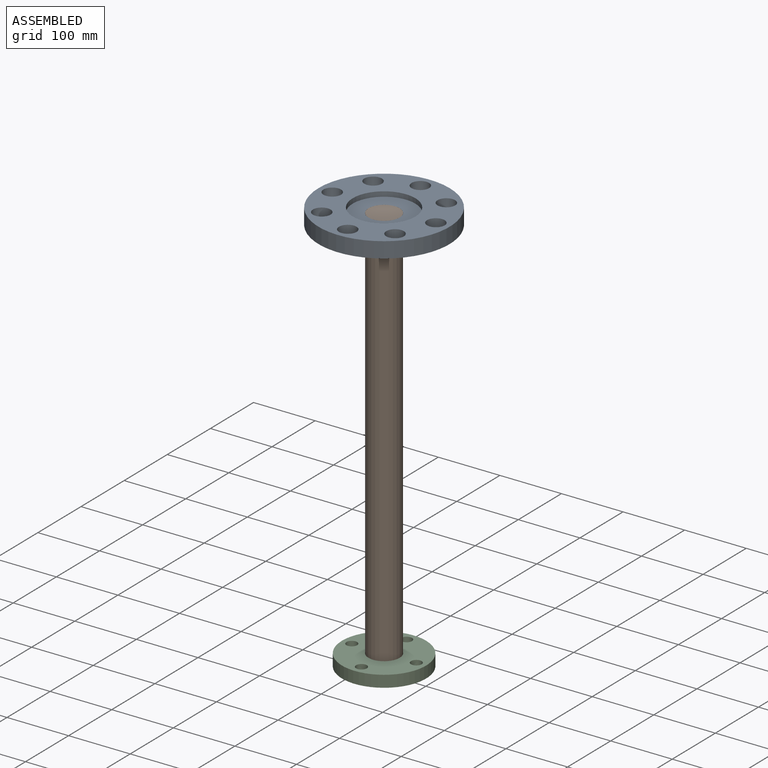
[diagram: assembled view]
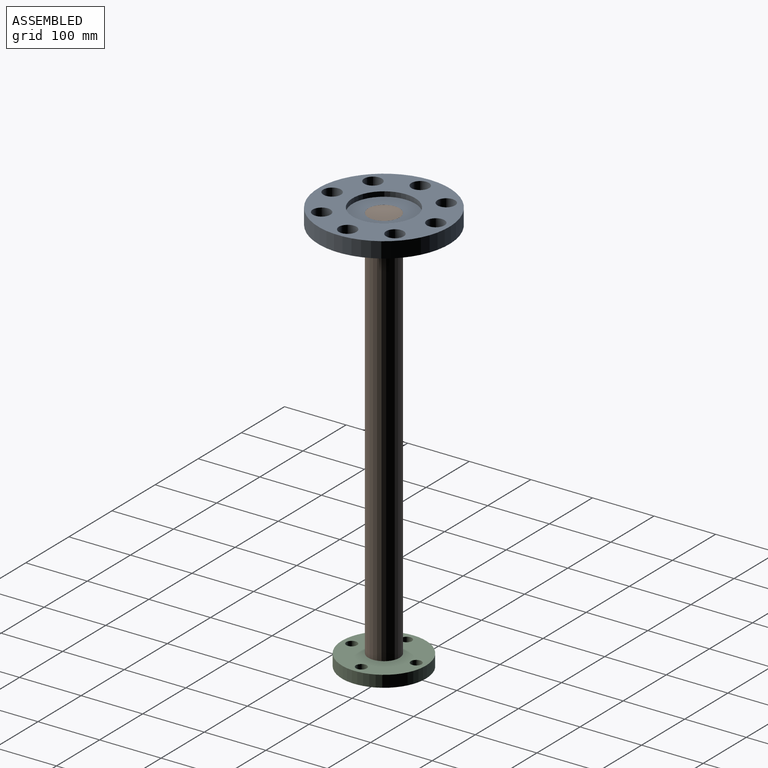
[diagram: assembled view, second angle]
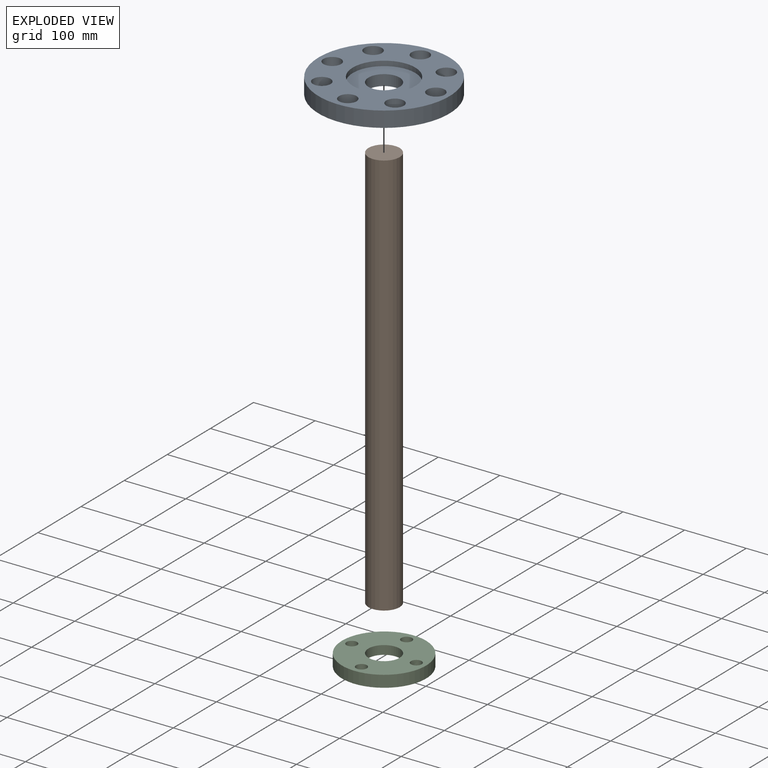
[diagram: exploded view]
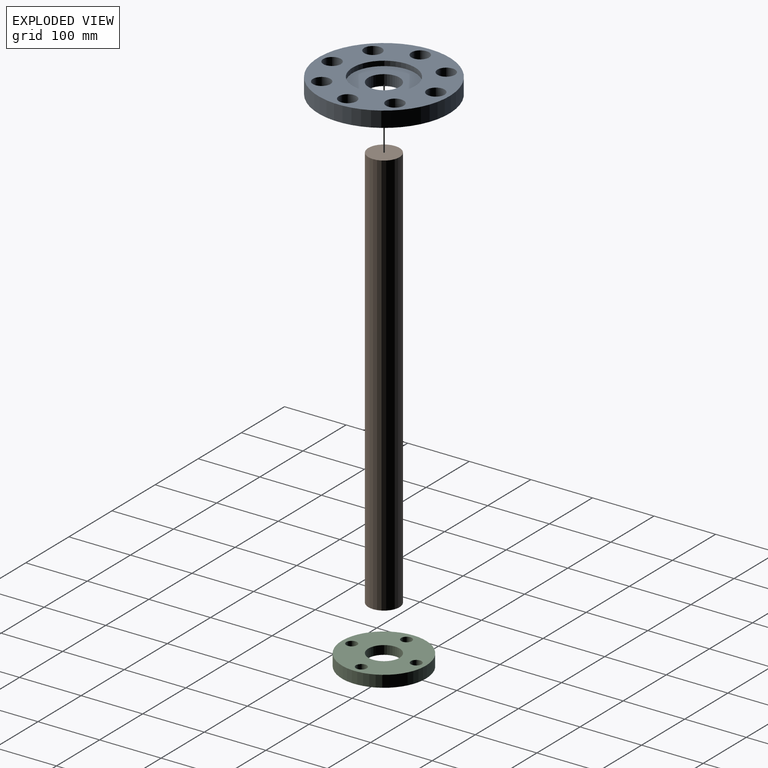
[diagram: exploded view, second angle]
ASSEMBLY  parts=3 mates=2
PART A: 14 faces, bbox 212.7x212.7x25.4 mm
  f0: cylinder r=106.36mm len=212.73mm, axis (0,0,1), area 16974.7mm2, adj f10,f11
  f1: cylinder r=14.29mm len=28.58mm, axis (0,0,1), area 2280.2mm2, adj f10,f11
  f2: cylinder r=14.29mm len=28.58mm, axis (0,0,1), area 2280.2mm2, adj f10,f11
  f3: cylinder r=14.29mm len=28.58mm, axis (0,0,1), area 2280.2mm2, adj f10,f11
  f4: cylinder r=14.29mm len=28.58mm, axis (0,0,1), area 2280.2mm2, adj f10,f11
  f5: cylinder r=14.29mm len=28.58mm, axis (0,0,1), area 2280.2mm2, adj f10,f11
  f6: cylinder r=14.29mm len=28.58mm, axis (0,0,1), area 2280.2mm2, adj f10,f11
  f7: cylinder r=14.29mm len=28.58mm, axis (0,0,1), area 2280.2mm2, adj f10,f11
  f8: cylinder r=14.29mm len=28.58mm, axis (0,0,1), area 2280.2mm2, adj f10,f11
  f9: cylinder r=25.4mm len=50.8mm, axis (0,0,1), area 2788.9mm2, adj f10,f13
  f10: plane 212.73x212.73mm, normal (0,0,-1), area 28383.5mm2, adj f0,f1,f2,f3,f4,f5,f6,f7
  f11: plane 212.73x212.73mm, normal (0,0,1), area 22303mm2, adj f0,f1,f2,f3,f4,f5,f6,f7
  f12: cylinder r=50.8mm len=101.6mm, axis (0,0,1), area 2529.5mm2, adj f11,f13
  f13: plane 101.6x101.6mm, normal (0,0,1), area 6080.5mm2, adj f9,f12
PART B: 3 faces, bbox 50.8x50.8x660.4 mm
  f0: cylinder r=25.4mm len=660.4mm, axis (0,0,1), area 105395.2mm2, adj f1,f2
  f1: plane 50.8x50.8mm, normal (0,0,-1), area 2026.8mm2, adj f0
  f2: plane 50.8x50.8mm, normal (0,0,1), area 2026.8mm2, adj f0
PART C: 10 faces, bbox 136.5x136.5x19.1 mm
  f0: cylinder r=25.4mm len=50.8mm, axis (0,0,-1), area 2278.2mm2, adj f6,f9
  f1: cylinder r=68.26mm len=136.53mm, axis (0,0,-1), area 8170.7mm2, adj f6,f7
  f2: cylinder r=8.73mm len=19.05mm, axis (0,0,-1), area 1045.1mm2, adj f6,f7
  f3: cylinder r=8.73mm len=19.05mm, axis (0,0,-1), area 1045.1mm2, adj f6,f7
  f4: cylinder r=8.73mm len=19.05mm, axis (0,0,-1), area 1045.1mm2, adj f6,f7
  f5: cylinder r=8.73mm len=19.05mm, axis (0,0,-1), area 1045.1mm2, adj f6,f7
  f6: plane 136.53x136.53mm, normal (0,0,1), area 11654.3mm2, adj f0,f1,f2,f3,f4,f5
  f7: plane 136.53x136.53mm, normal (0,0,-1), area 9120.7mm2, adj f1,f2,f3,f4,f5,f8
  f8: cylinder r=38.1mm len=76.2mm, axis (0,0,-1), area 1143.1mm2, adj f7,f9
  f9: plane 76.2x76.2mm, normal (0,0,-1), area 2533.5mm2, adj f0,f8
PLACE A t=(177.15,-64.26,153.42)mm
PLACE B t=(177.15,-64.26,153.42)mm
PLACE C t=(177.15,-64.26,153.42)mm
MATE fastened A.f9 <-> B.f0  axis (0,0,1) through (177.15,-64.26,-276.78)mm
MATE fastened B.f0 <-> C.f0  axis (0,0,-1) through (177.15,-64.26,-937.18)mm
